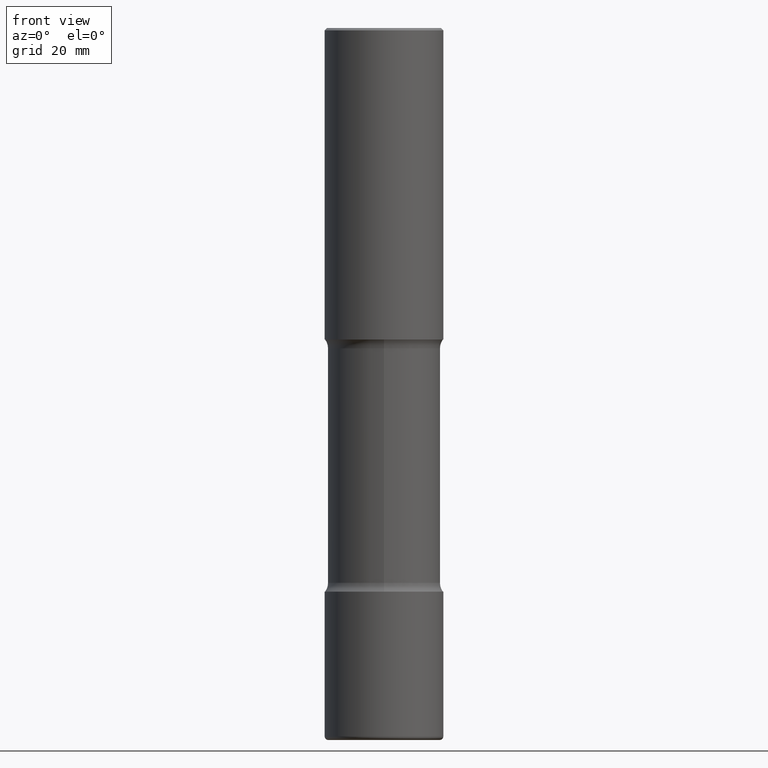
[diagram: clean part render]
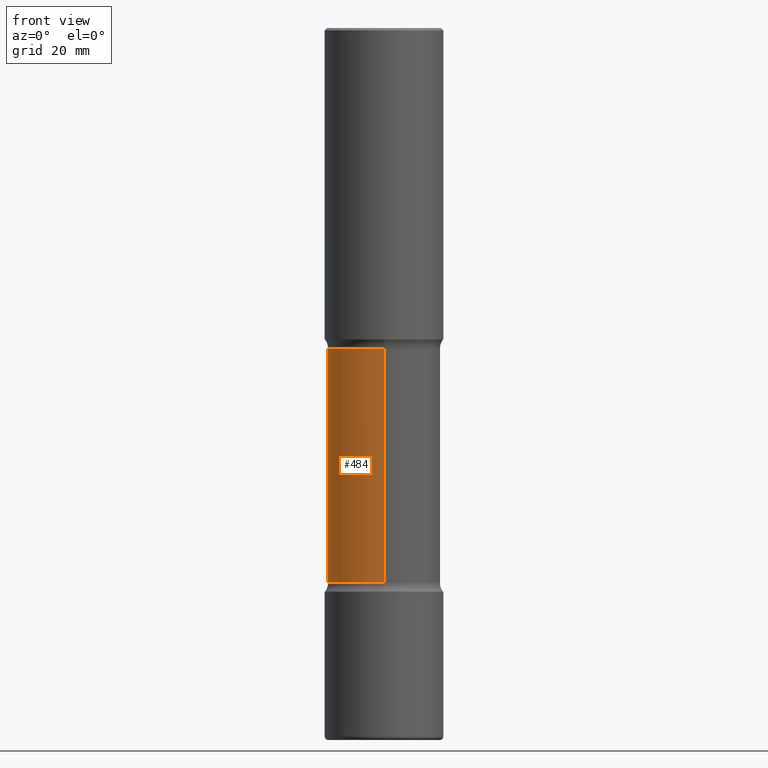
[diagram: same view with one face highlighted and labeled with its STEP entity id]
A machine part, front view. The second image highlights one B-rep face of the part: STEP entity #484.
In plain terms, the highlighted cylindrical surface (partial cylindrical patch) has radius 12.065 mm, axis along (0, -0, -1).
Its self-contained STEP definition (entity closure, byte-faithful):
#43 = DIRECTION ( 'NONE',  ( 2.523594115079346297E-29, -3.379601449890201278E-15, -1.000000000000000000 ) ) ;
#50 = VERTEX_POINT ( 'NONE', #279 ) ;
#63 = CARTESIAN_POINT ( 'NONE',  ( 3.316907271901089495E-15, 0.4749999999999836020, -4.675000000000001599 ) ) ;
#100 = DIRECTION ( 'NONE',  ( 2.523594115079346297E-29, -3.379601449890201278E-15, -1.000000000000000000 ) ) ;
#101 = VERTEX_POINT ( 'NONE', #456 ) ;
#108 = VECTOR ( 'NONE', #43, 39.37007874015748143 ) ;
#110 = DIRECTION ( 'NONE',  ( 6.982962677686265133E-15, 1.000000000000000000, -2.300503573612011422E-15 ) ) ;
#150 = ORIENTED_EDGE ( 'NONE', *, *, #336, .T. ) ;
#161 = CARTESIAN_POINT ( 'NONE',  ( 1.477046947322857785E-28, -2.080903817186768789E-14, -5.999999999999999112 ) ) ;
#184 = CARTESIAN_POINT ( 'NONE',  ( -3.344492773913506542E-15, -0.4750000000000162426, -4.674999999999998934 ) ) ;
#191 = CIRCLE ( 'NONE', #501, 0.4749999999999999778 ) ;
#195 = DIRECTION ( 'NONE',  ( 2.523594115079346016E-29, -3.379601449890201278E-15, -1.000000000000000000 ) ) ;
#199 = CARTESIAN_POINT ( 'NONE',  ( 1.142670727074844742E-28, -1.633106625076317916E-14, -4.674999999999999822 ) ) ;
#232 = LINE ( 'NONE', #390, #108 ) ;
#278 = CARTESIAN_POINT ( 'NONE',  ( -3.258736548941329344E-15, -0.4750000000000207945, -5.999999999999998224 ) ) ;
#279 = CARTESIAN_POINT ( 'NONE',  ( 3.316907271901040585E-15, 0.4749999999999903744, -2.700000000000003286 ) ) ;
#319 = DIRECTION ( 'NONE',  ( 6.982962677686265133E-15, 1.000000000000000000, -3.450755360418016739E-15 ) ) ;
#320 = VERTEX_POINT ( 'NONE', #184 ) ;
#336 = EDGE_CURVE ( 'NONE', #50, #410, #232, .T. ) ;
#352 = DIRECTION ( 'NONE',  ( 6.982962677686265133E-15, 1.000000000000000000, -3.450755360418017133E-15 ) ) ;
#360 = CARTESIAN_POINT ( 'NONE',  ( 6.442608893466743677E-29, -9.656353387230035032E-15, -2.700000000000001954 ) ) ;
#363 = EDGE_LOOP ( 'NONE', ( #534, #495, #150, #401 ) ) ;
#367 = FACE_OUTER_BOUND ( 'NONE', #363, .T. ) ;
#389 = EDGE_CURVE ( 'NONE', #320, #410, #551, .T. ) ;
#390 = CARTESIAN_POINT ( 'NONE',  ( 3.316907271901123416E-15, 0.4749999999999791611, -6.000000000000000888 ) ) ;
#401 = ORIENTED_EDGE ( 'NONE', *, *, #389, .F. ) ;
#410 = VERTEX_POINT ( 'NONE', #63 ) ;
#415 = AXIS2_PLACEMENT_3D ( 'NONE', #199, #195, #352 ) ;
#448 = VECTOR ( 'NONE', #100, 39.37007874015748143 ) ;
#456 = CARTESIAN_POINT ( 'NONE',  ( -3.344492773913559396E-15, -0.4750000000000096367, -2.700000000000000178 ) ) ;
#474 = DIRECTION ( 'NONE',  ( 2.523594115079346016E-29, -3.379601449890201278E-15, -1.000000000000000000 ) ) ;
#476 = EDGE_CURVE ( 'NONE', #101, #50, #191, .T. ) ;
#480 = CYLINDRICAL_SURFACE ( 'NONE', #512, 0.4749999999999999778 ) ;
#484 = ADVANCED_FACE ( 'NONE', ( #367 ), #480, .T. ) ;
#495 = ORIENTED_EDGE ( 'NONE', *, *, #476, .T. ) ;
#501 = AXIS2_PLACEMENT_3D ( 'NONE', #360, #524, #319 ) ;
#505 = EDGE_CURVE ( 'NONE', #101, #320, #533, .T. ) ;
#512 = AXIS2_PLACEMENT_3D ( 'NONE', #161, #474, #110 ) ;
#524 = DIRECTION ( 'NONE',  ( 2.523594115079346016E-29, -3.379601449890201278E-15, -1.000000000000000000 ) ) ;
#533 = LINE ( 'NONE', #278, #448 ) ;
#534 = ORIENTED_EDGE ( 'NONE', *, *, #505, .F. ) ;
#551 = CIRCLE ( 'NONE', #415, 0.4749999999999999223 ) ;